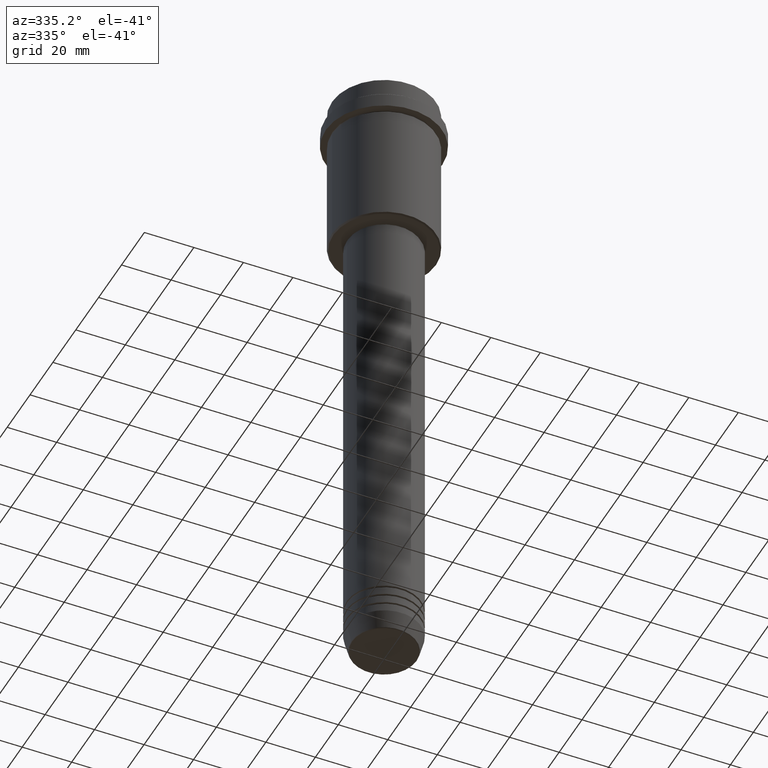
[diagram: clean part render]
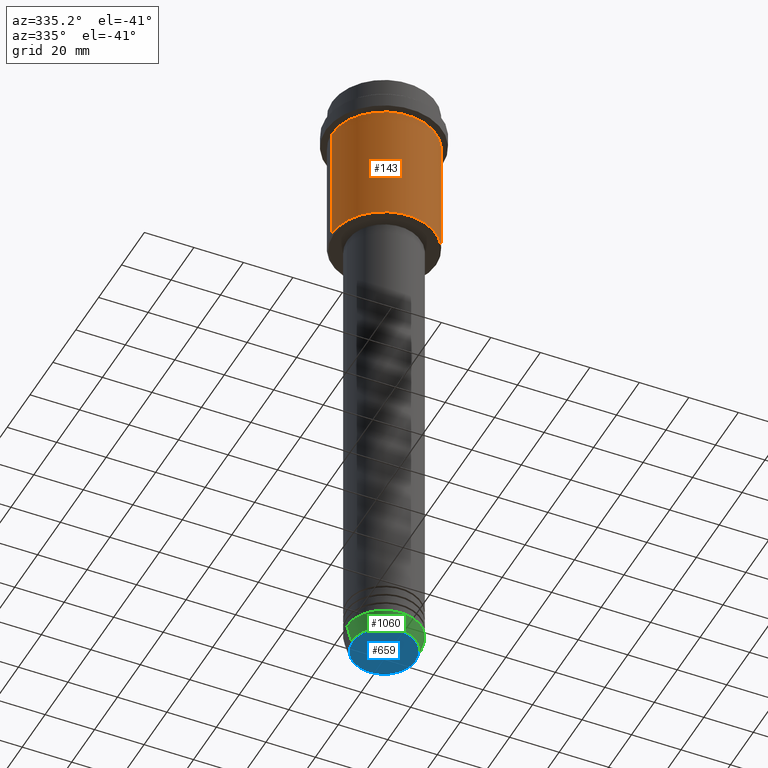
[diagram: same view with three faces highlighted in distinct colors, each labeled with its STEP entity id]
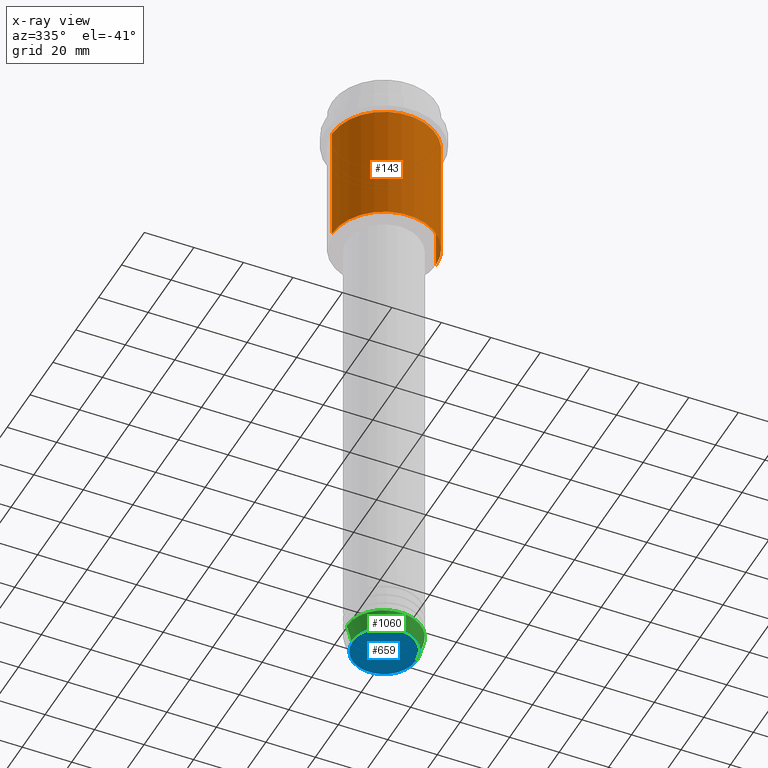
[diagram: x-ray of the same camera — body ghosted, the three highlighted faces saturated]
A machine part, auxiliary view with three faces highlighted in distinct colors.
The next image is the same camera in x-ray (body ghosted, the three faces saturated) — at least one of them is partly hidden behind the body in this view.
Their STEP definitions:

[orange] entity #143 — the highlighted cylindrical surface (partial cylindrical patch) has radius 21 mm, axis along (-0, -0, 1).
#12 = CARTESIAN_POINT ( 'NONE',  ( -20.99999999999999645, 2.571758278209441267E-15, -16.00000000000000355 ) ) ;
#74 = CARTESIAN_POINT ( 'NONE',  ( 20.99999999999999645, 0.000000000000000000, -16.00000000000000355 ) ) ;
#131 = AXIS2_PLACEMENT_3D ( 'NONE', #544, #1034, #714 ) ;
#143 = ADVANCED_FACE ( 'NONE', ( #653 ), #1087, .T. ) ;
#163 = EDGE_CURVE ( 'NONE', #1333, #715, #977, .T. ) ;
#252 = DIRECTION ( 'NONE',  ( -0.000000000000000000, -0.000000000000000000, 1.000000000000000000 ) ) ;
#269 = DIRECTION ( 'NONE',  ( -0.000000000000000000, -0.000000000000000000, 1.000000000000000000 ) ) ;
#282 = EDGE_CURVE ( 'NONE', #1018, #1180, #685, .T. ) ;
#288 = DIRECTION ( 'NONE',  ( -0.000000000000000000, -0.000000000000000000, 1.000000000000000000 ) ) ;
#324 = EDGE_CURVE ( 'NONE', #715, #1180, #709, .T. ) ;
#434 = CARTESIAN_POINT ( 'NONE',  ( 20.99999999999999645, 0.000000000000000000, -64.49999999999997158 ) ) ;
#489 = CARTESIAN_POINT ( 'NONE',  ( 20.99999999999999645, 0.000000000000000000, 0.000000000000000000 ) ) ;
#532 = ORIENTED_EDGE ( 'NONE', *, *, #324, .F. ) ;
#544 = CARTESIAN_POINT ( 'NONE',  ( 0.000000000000000000, 0.000000000000000000, 0.000000000000000000 ) ) ;
#566 = EDGE_CURVE ( 'NONE', #1333, #1018, #890, .T. ) ;
#653 = FACE_OUTER_BOUND ( 'NONE', #733, .T. ) ;
#655 = CARTESIAN_POINT ( 'NONE',  ( -20.99999999999999645, 2.571758278209441267E-15, 0.000000000000000000 ) ) ;
#685 = LINE ( 'NONE', #489, #751 ) ;
#691 = VECTOR ( 'NONE', #1090, 1000.000000000000000 ) ;
#697 = DIRECTION ( 'NONE',  ( 1.000000000000000000, 0.000000000000000000, 0.000000000000000000 ) ) ;
#709 = CIRCLE ( 'NONE', #1223, 20.99999999999999645 ) ;
#714 = DIRECTION ( 'NONE',  ( 1.000000000000000000, 0.000000000000000000, 0.000000000000000000 ) ) ;
#715 = VERTEX_POINT ( 'NONE', #12 ) ;
#724 = ORIENTED_EDGE ( 'NONE', *, *, #163, .F. ) ;
#733 = EDGE_LOOP ( 'NONE', ( #724, #1196, #854, #532 ) ) ;
#751 = VECTOR ( 'NONE', #288, 1000.000000000000000 ) ;
#822 = CARTESIAN_POINT ( 'NONE',  ( 0.000000000000000000, 0.000000000000000000, -16.00000000000000355 ) ) ;
#854 = ORIENTED_EDGE ( 'NONE', *, *, #282, .T. ) ;
#890 = CIRCLE ( 'NONE', #1004, 20.99999999999999645 ) ;
#977 = LINE ( 'NONE', #655, #691 ) ;
#1004 = AXIS2_PLACEMENT_3D ( 'NONE', #1234, #252, #1151 ) ;
#1018 = VERTEX_POINT ( 'NONE', #434 ) ;
#1034 = DIRECTION ( 'NONE',  ( -0.000000000000000000, -0.000000000000000000, 1.000000000000000000 ) ) ;
#1087 = CYLINDRICAL_SURFACE ( 'NONE', #131, 20.99999999999999645 ) ;
#1090 = DIRECTION ( 'NONE',  ( -0.000000000000000000, -0.000000000000000000, 1.000000000000000000 ) ) ;
#1151 = DIRECTION ( 'NONE',  ( -1.000000000000000000, 0.000000000000000000, 0.000000000000000000 ) ) ;
#1180 = VERTEX_POINT ( 'NONE', #74 ) ;
#1196 = ORIENTED_EDGE ( 'NONE', *, *, #566, .T. ) ;
#1223 = AXIS2_PLACEMENT_3D ( 'NONE', #822, #269, #697 ) ;
#1234 = CARTESIAN_POINT ( 'NONE',  ( 0.000000000000000000, 0.000000000000000000, -64.49999999999997158 ) ) ;
#1330 = CARTESIAN_POINT ( 'NONE',  ( -20.99999999999999645, 2.571758278209441267E-15, -64.49999999999997158 ) ) ;
#1333 = VERTEX_POINT ( 'NONE', #1330 ) ;

[blue] entity #659 — the highlighted planar face has unit normal (0, -0, 1).
#17 = CARTESIAN_POINT ( 'NONE',  ( 0.000000000000000000, 0.000000000000000000, -260.0000000000000000 ) ) ;
#38 = AXIS2_PLACEMENT_3D ( 'NONE', #73, #797, #1250 ) ;
#69 = AXIS2_PLACEMENT_3D ( 'NONE', #170, #599, #1030 ) ;
#73 = CARTESIAN_POINT ( 'NONE',  ( 0.000000000000000000, 0.000000000000000000, -260.0000000000000000 ) ) ;
#136 = CIRCLE ( 'NONE', #69, 12.74069215899265828 ) ;
#170 = CARTESIAN_POINT ( 'NONE',  ( 0.000000000000000000, 0.000000000000000000, -260.0000000000000000 ) ) ;
#242 = DIRECTION ( 'NONE',  ( 1.000000000000000000, 0.000000000000000000, 0.000000000000000000 ) ) ;
#321 = EDGE_CURVE ( 'NONE', #1011, #1182, #596, .T. ) ;
#428 = CARTESIAN_POINT ( 'NONE',  ( -12.74069215899265828, 1.589857736427680246E-15, -260.0000000000000000 ) ) ;
#554 = FACE_OUTER_BOUND ( 'NONE', #637, .T. ) ;
#596 = CIRCLE ( 'NONE', #38, 12.74069215899265828 ) ;
#599 = DIRECTION ( 'NONE',  ( 0.000000000000000000, 0.000000000000000000, -1.000000000000000000 ) ) ;
#612 = CARTESIAN_POINT ( 'NONE',  ( 12.74069215899265828, 0.000000000000000000, -260.0000000000000000 ) ) ;
#637 = EDGE_LOOP ( 'NONE', ( #768, #1132 ) ) ;
#659 = ADVANCED_FACE ( 'NONE', ( #554 ), #1225, .F. ) ;
#768 = ORIENTED_EDGE ( 'NONE', *, *, #1124, .T. ) ;
#797 = DIRECTION ( 'NONE',  ( 0.000000000000000000, 0.000000000000000000, -1.000000000000000000 ) ) ;
#837 = AXIS2_PLACEMENT_3D ( 'NONE', #17, #897, #242 ) ;
#897 = DIRECTION ( 'NONE',  ( 0.000000000000000000, -0.000000000000000000, 1.000000000000000000 ) ) ;
#1011 = VERTEX_POINT ( 'NONE', #428 ) ;
#1030 = DIRECTION ( 'NONE',  ( 1.000000000000000000, 0.000000000000000000, 0.000000000000000000 ) ) ;
#1124 = EDGE_CURVE ( 'NONE', #1182, #1011, #136, .T. ) ;
#1132 = ORIENTED_EDGE ( 'NONE', *, *, #321, .T. ) ;
#1182 = VERTEX_POINT ( 'NONE', #612 ) ;
#1225 = PLANE ( 'NONE',  #837 ) ;
#1250 = DIRECTION ( 'NONE',  ( 1.000000000000000000, 0.000000000000000000, 0.000000000000000000 ) ) ;

[green] entity #1060 — the highlighted conical surface has half-angle 15 deg.
#23 = CIRCLE ( 'NONE', #289, 13.22365507213718772 ) ;
#31 = LINE ( 'NONE', #1200, #325 ) ;
#51 = DIRECTION ( 'NONE',  ( 1.000000000000000000, 0.000000000000000000, 0.000000000000000000 ) ) ;
#67 = AXIS2_PLACEMENT_3D ( 'NONE', #686, #600, #712 ) ;
#108 = CARTESIAN_POINT ( 'NONE',  ( 15.00000000000000000, 0.000000000000000000, -253.0000000000000000 ) ) ;
#133 = DIRECTION ( 'NONE',  ( 1.000000000000000000, 0.000000000000000000, 0.000000000000000000 ) ) ;
#216 = EDGE_CURVE ( 'NONE', #762, #708, #220, .T. ) ;
#220 = CIRCLE ( 'NONE', #67, 15.00000000000000000 ) ;
#237 = CARTESIAN_POINT ( 'NONE',  ( 15.00000000000000000, 0.000000000000000000, -253.0000000000000000 ) ) ;
#250 = ORIENTED_EDGE ( 'NONE', *, *, #552, .T. ) ;
#289 = AXIS2_PLACEMENT_3D ( 'NONE', #1118, #654, #133 ) ;
#310 = VERTEX_POINT ( 'NONE', #380 ) ;
#325 = VECTOR ( 'NONE', #543, 1000.000000000000000 ) ;
#334 = CARTESIAN_POINT ( 'NONE',  ( 0.000000000000000000, 0.000000000000000000, -253.0000000000000000 ) ) ;
#355 = EDGE_LOOP ( 'NONE', ( #576, #753, #250, #1069 ) ) ;
#358 = CONICAL_SURFACE ( 'NONE', #1083, 15.00000000000000000, 0.2617993877991500740 ) ;
#380 = CARTESIAN_POINT ( 'NONE',  ( 13.22365507213718772, 0.000000000000000000, -259.6294095225513274 ) ) ;
#501 = VECTOR ( 'NONE', #1220, 1000.000000000000000 ) ;
#522 = EDGE_CURVE ( 'NONE', #567, #762, #31, .T. ) ;
#543 = DIRECTION ( 'NONE',  ( -0.2588190451025213501, 3.169619151431772337E-17, 0.9659258262890680902 ) ) ;
#552 = EDGE_CURVE ( 'NONE', #310, #708, #772, .T. ) ;
#567 = VERTEX_POINT ( 'NONE', #577 ) ;
#576 = ORIENTED_EDGE ( 'NONE', *, *, #522, .F. ) ;
#577 = CARTESIAN_POINT ( 'NONE',  ( -13.22365507213718772, 1.728200442216588386E-15, -259.6294095225513274 ) ) ;
#600 = DIRECTION ( 'NONE',  ( -0.000000000000000000, -0.000000000000000000, 1.000000000000000000 ) ) ;
#654 = DIRECTION ( 'NONE',  ( -0.000000000000000000, -0.000000000000000000, 1.000000000000000000 ) ) ;
#686 = CARTESIAN_POINT ( 'NONE',  ( 0.000000000000000000, 0.000000000000000000, -253.0000000000000000 ) ) ;
#708 = VERTEX_POINT ( 'NONE', #108 ) ;
#712 = DIRECTION ( 'NONE',  ( 1.000000000000000000, 0.000000000000000000, 0.000000000000000000 ) ) ;
#753 = ORIENTED_EDGE ( 'NONE', *, *, #1391, .T. ) ;
#762 = VERTEX_POINT ( 'NONE', #1342 ) ;
#772 = LINE ( 'NONE', #237, #501 ) ;
#1017 = DIRECTION ( 'NONE',  ( -0.000000000000000000, -0.000000000000000000, 1.000000000000000000 ) ) ;
#1060 = ADVANCED_FACE ( 'NONE', ( #1120 ), #358, .T. ) ;
#1069 = ORIENTED_EDGE ( 'NONE', *, *, #216, .F. ) ;
#1083 = AXIS2_PLACEMENT_3D ( 'NONE', #334, #1017, #51 ) ;
#1118 = CARTESIAN_POINT ( 'NONE',  ( 0.000000000000000000, 0.000000000000000000, -259.6294095225513274 ) ) ;
#1120 = FACE_OUTER_BOUND ( 'NONE', #355, .T. ) ;
#1200 = CARTESIAN_POINT ( 'NONE',  ( -15.00000000000000000, 1.836970198721029589E-15, -253.0000000000000000 ) ) ;
#1220 = DIRECTION ( 'NONE',  ( 0.2588190451025213501, 0.000000000000000000, 0.9659258262890680902 ) ) ;
#1342 = CARTESIAN_POINT ( 'NONE',  ( -15.00000000000000000, 1.836970198721029589E-15, -253.0000000000000000 ) ) ;
#1391 = EDGE_CURVE ( 'NONE', #567, #310, #23, .T. ) ;